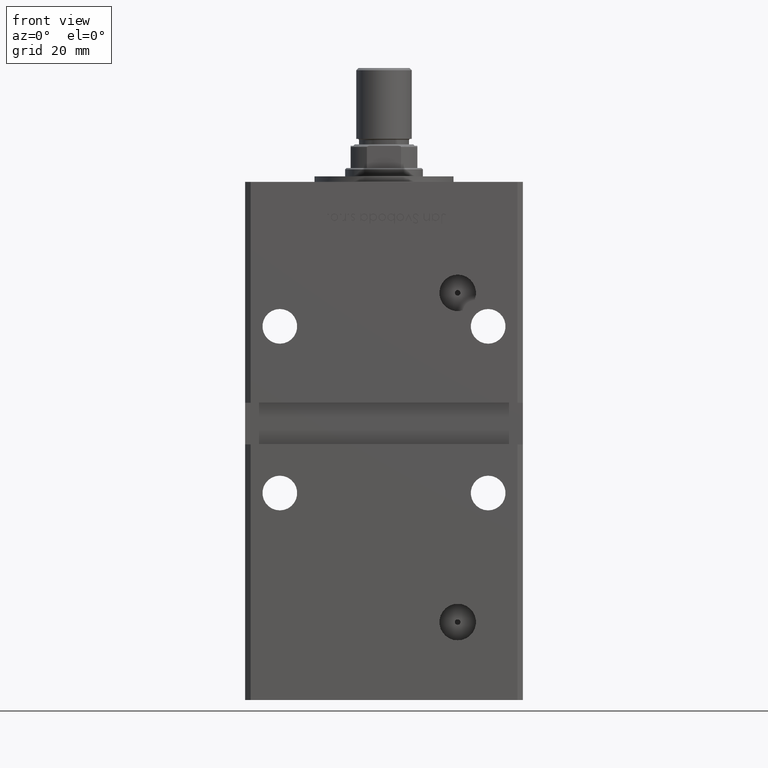
[diagram: clean part render]
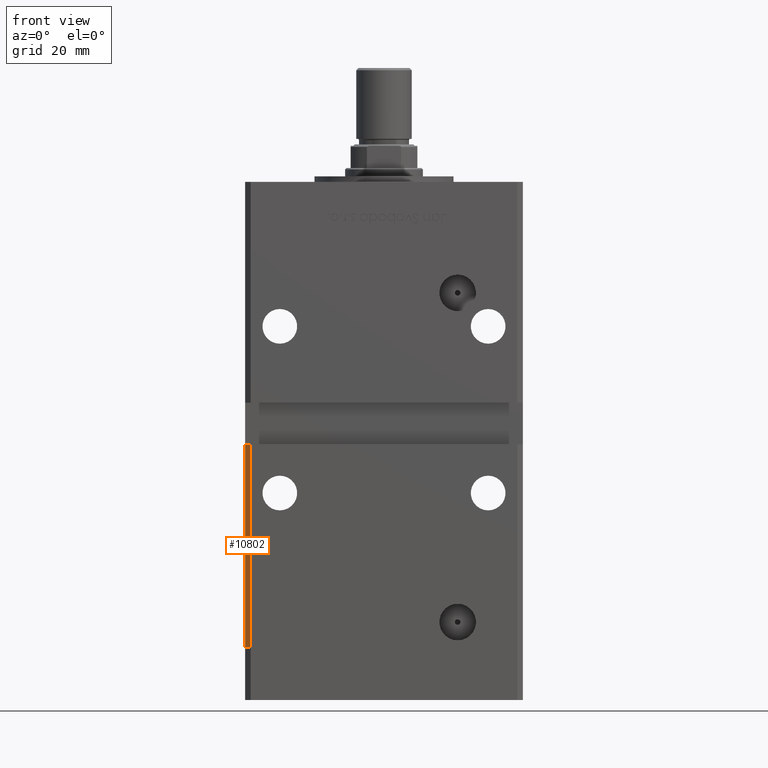
[diagram: same view with one face highlighted and labeled with its STEP entity id]
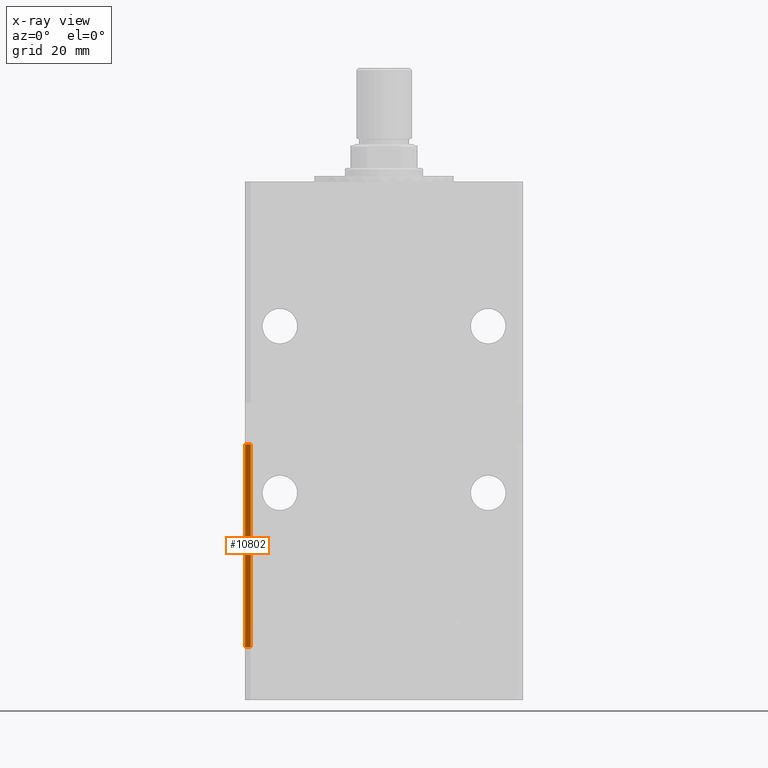
[diagram: x-ray of the same camera — body ghosted, the highlighted face saturated]
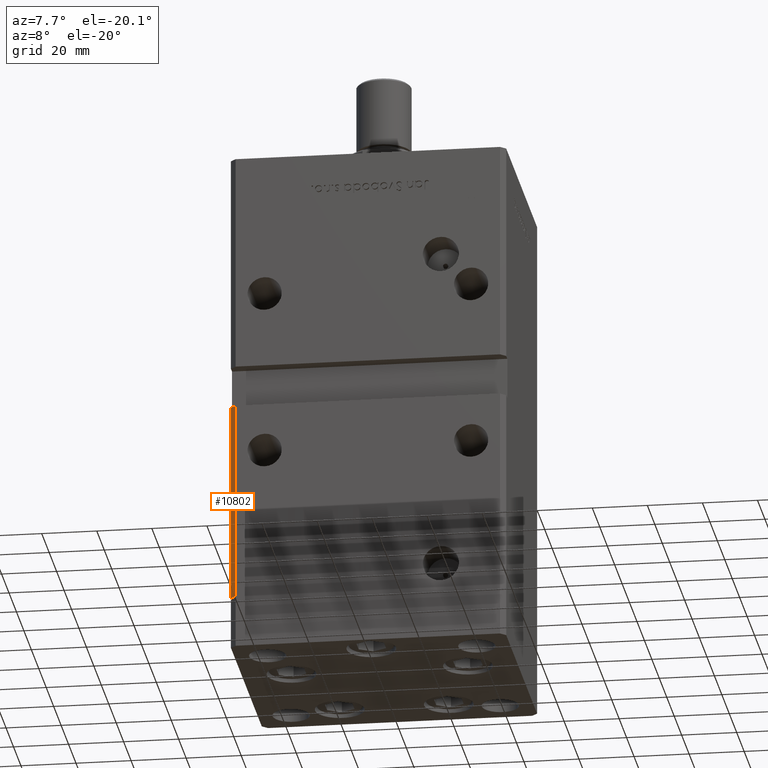
[diagram: same view with one face highlighted and labeled with its STEP entity id]
A machine part, front view. The second image highlights one B-rep face of the part: STEP entity #10802.
The next image is the same camera in x-ray: the body ghosted, the highlighted face saturated — about 0% of this face is hidden behind the body in this view.
A second angle (auxiliary view) of the same face is appended — the face is thin or edge-on in the first view.
In plain terms, the highlighted planar face has unit normal (0.7071, 0.7071, 0).
Its self-contained STEP definition (entity closure, byte-faithful):
#123 = AXIS2_PLACEMENT_3D ( 'NONE', #23779, #15907, #28377 ) ;
#411 = ORIENTED_EDGE ( 'NONE', *, *, #36951, .T. ) ;
#3182 = DIRECTION ( 'NONE',  ( -0.7071067811865474617, 0.7071067811865474617, 0.000000000000000000 ) ) ;
#4918 = CARTESIAN_POINT ( 'NONE',  ( -47.99999999999998579, -43.50000000000000000, 0.000000000000000000 ) ) ;
#5291 = EDGE_CURVE ( 'NONE', #30067, #33200, #16694, .T. ) ;
#6014 = CARTESIAN_POINT ( 'NONE',  ( -47.99999999999998579, -43.50000000000000000, 148.5000000000000000 ) ) ;
#6867 = VECTOR ( 'NONE', #45456, 1000.000000000000114 ) ;
#10802 = ADVANCED_FACE ( 'NONE', ( #20497 ), #44917, .F. ) ;
#12784 = EDGE_LOOP ( 'NONE', ( #24461, #28490, #411, #39610 ) ) ;
#13064 = LINE ( 'NONE', #6014, #14367 ) ;
#14367 = VECTOR ( 'NONE', #17944, 1000.000000000000000 ) ;
#15907 = DIRECTION ( 'NONE',  ( 0.7071067811865475727, 0.7071067811865475727, -0.000000000000000000 ) ) ;
#16015 = VECTOR ( 'NONE', #3182, 1000.000000000000114 ) ;
#16190 = VERTEX_POINT ( 'NONE', #48407 ) ;
#16694 = LINE ( 'NONE', #49523, #6867 ) ;
#17944 = DIRECTION ( 'NONE',  ( -0.000000000000000000, -0.000000000000000000, -1.000000000000000000 ) ) ;
#19215 = CARTESIAN_POINT ( 'NONE',  ( -49.99999999999998579, -41.49999999999999289, 0.000000000000000000 ) ) ;
#20497 = FACE_OUTER_BOUND ( 'NONE', #12784, .T. ) ;
#21397 = VERTEX_POINT ( 'NONE', #41012 ) ;
#23779 = CARTESIAN_POINT ( 'NONE',  ( -49.99999999999998579, -41.49999999999999289, 148.5000000000000000 ) ) ;
#24461 = ORIENTED_EDGE ( 'NONE', *, *, #36785, .F. ) ;
#25821 = DIRECTION ( 'NONE',  ( -0.000000000000000000, -0.000000000000000000, -1.000000000000000000 ) ) ;
#28377 = DIRECTION ( 'NONE',  ( -0.7071067811865474617, 0.7071067811865474617, 0.000000000000000000 ) ) ;
#28490 = ORIENTED_EDGE ( 'NONE', *, *, #34404, .T. ) ;
#29899 = LINE ( 'NONE', #46429, #36880 ) ;
#30067 = VERTEX_POINT ( 'NONE', #19215 ) ;
#32714 = LINE ( 'NONE', #49000, #16015 ) ;
#33200 = VERTEX_POINT ( 'NONE', #4918 ) ;
#34404 = EDGE_CURVE ( 'NONE', #21397, #16190, #32714, .T. ) ;
#36785 = EDGE_CURVE ( 'NONE', #21397, #33200, #13064, .T. ) ;
#36880 = VECTOR ( 'NONE', #25821, 1000.000000000000000 ) ;
#36951 = EDGE_CURVE ( 'NONE', #16190, #30067, #29899, .T. ) ;
#39610 = ORIENTED_EDGE ( 'NONE', *, *, #5291, .T. ) ;
#41012 = CARTESIAN_POINT ( 'NONE',  ( -47.99999999999998579, -43.50000000000000000, 73.00000000000000000 ) ) ;
#44917 = PLANE ( 'NONE',  #123 ) ;
#45456 = DIRECTION ( 'NONE',  ( 0.7071067811865474617, -0.7071067811865474617, 0.000000000000000000 ) ) ;
#46429 = CARTESIAN_POINT ( 'NONE',  ( -49.99999999999998579, -41.49999999999999289, 148.5000000000000000 ) ) ;
#48407 = CARTESIAN_POINT ( 'NONE',  ( -49.99999999999998579, -41.49999999999999289, 73.00000000000000000 ) ) ;
#49000 = CARTESIAN_POINT ( 'NONE',  ( -49.99999999999998579, -41.49999999999999289, 73.00000000000000000 ) ) ;
#49523 = CARTESIAN_POINT ( 'NONE',  ( -49.99999999999998579, -41.49999999999999289, 0.000000000000000000 ) ) ;